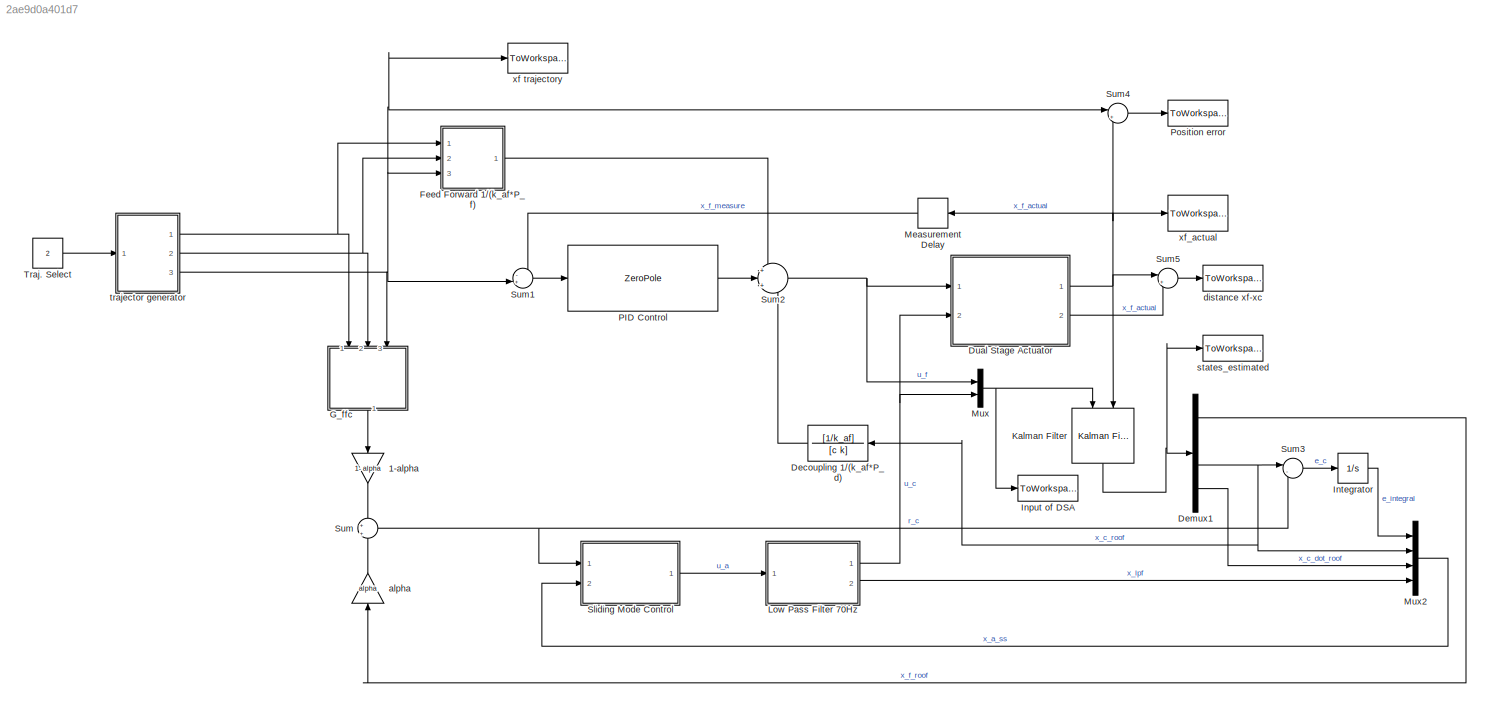
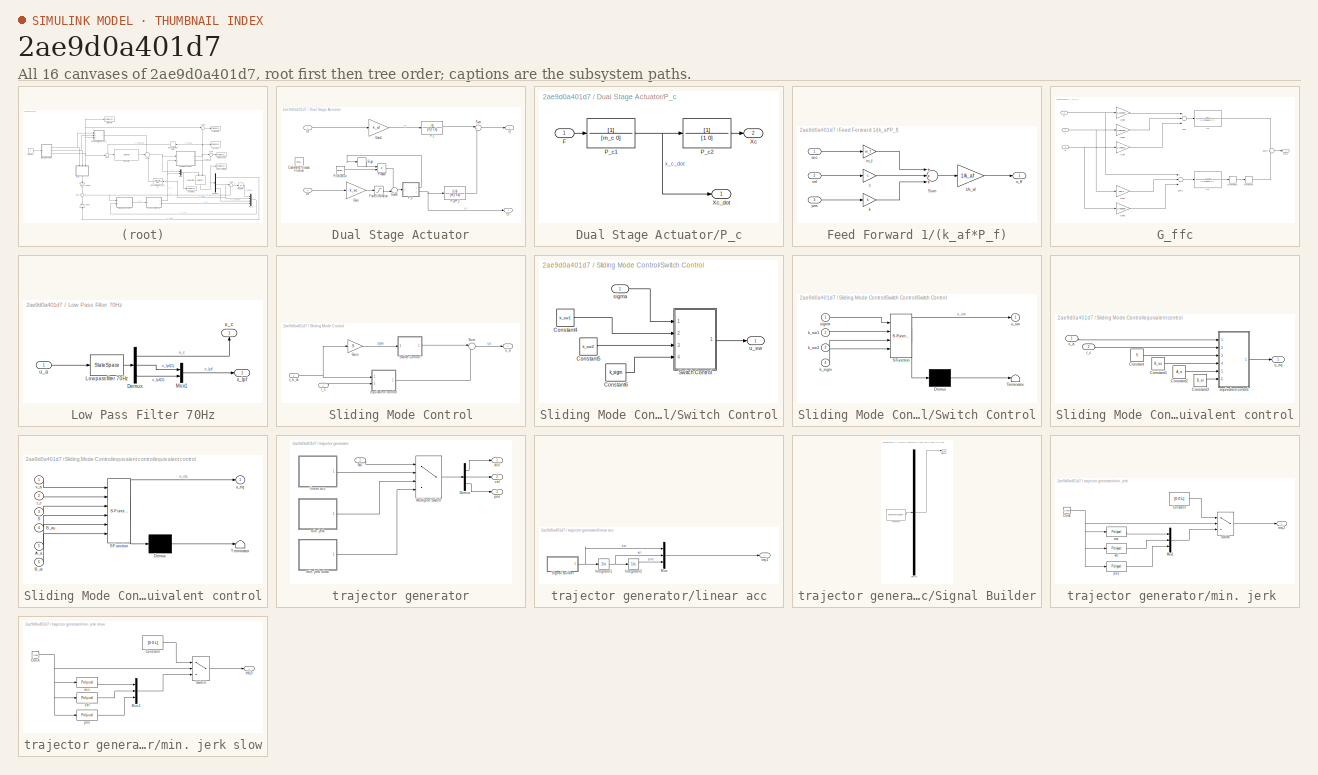
[diagram: thumbnail index - all 16 canvases of the model, root first then tree order]
MODEL slx_2ae9d0a401d7
KIND model
CONFIG AbsTol = auto
CONFIG FixedStep = 5e-5
CONFIG MaxStep = auto
CONFIG MinStep = auto
CONFIG RelTol = 1e-3
CONFIG SampleTimeConstraint = Unconstrained
CONFIG Solver = FixedStepAuto
CONFIG SolverMode = Auto
CONFIG SolverName = FixedStepAuto
CONFIG StartTime = 0.0
CONFIG StopTime = 0.6
BLOCK [Gain] 1-alpha
  Gain = 1- alpha
  OutDataTypeStr = Inherit: Inherit via internal rule
  ParamDataTypeStr = Inherit: Inherit via internal rule
  SaturateOnIntegerOverflow = off
BLOCK [TransferFcn] Decoupling 1//(k_af*P_d)
  Denominator = [c k]
  Numerator = [1/k_af]
BLOCK [Demux] Demux1
  DisplayOption = bar
  Ports = [1, 4]
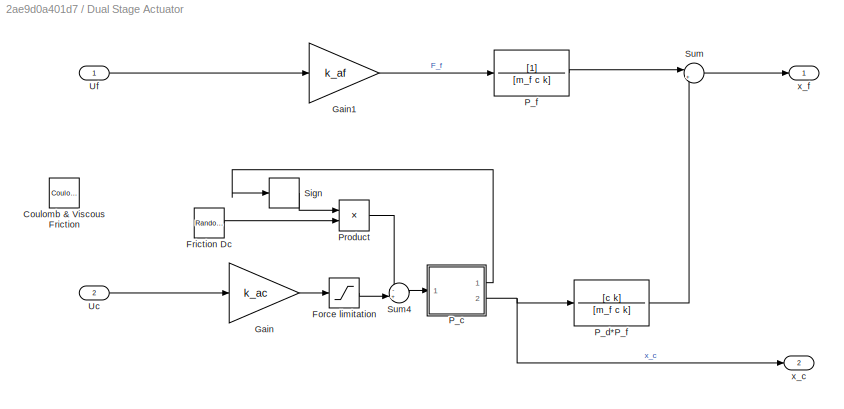
BLOCK [SubSystem] Dual Stage Actuator
  Ports = [2, 2]
  RequestExecContextInheritance = off
  Variant = off
BLOCK [Reference] Dual Stage Actuator/Coulomb & Viscous Friction  REF=simulink/Discontinuities/Coulomb &
Viscous Friction
  Commented = on
  Ports = [1, 1]
  SourceBlock = simulink/Discontinuities/Coulomb &\nViscous Friction
  SourceType = Coulombic and Viscous Friction
BLOCK [Saturate] Dual Stage Actuator/Force limitation
  InputPortMap = u0
  LowerLimit = -F_max
  Ports = [1, 1]
  UpperLimit = F_max
BLOCK [RandomNumber] Dual Stage Actuator/Friction Dc
  Mean = 19
  SampleTime = 0.1
  Variance = 6.1^2
BLOCK [Gain] Dual Stage Actuator/Gain
  Gain = k_ac
  OutDataTypeStr = Inherit: Inherit via internal rule
  ParamDataTypeStr = Inherit: Inherit via internal rule
  SaturateOnIntegerOverflow = off
BLOCK [Gain] Dual Stage Actuator/Gain1
  Gain = k_af
  OutDataTypeStr = Inherit: Inherit via internal rule
  ParamDataTypeStr = Inherit: Inherit via internal rule
  SaturateOnIntegerOverflow = off
BLOCK [SubSystem] Dual Stage Actuator/P_c
  Ports = [1, 2]
  RequestExecContextInheritance = off
  Variant = off
BLOCK [Inport] Dual Stage Actuator/P_c/F
  IconDisplay = Port number
BLOCK [TransferFcn] Dual Stage Actuator/P_c/P_c1
  Denominator = [m_c 0]
BLOCK [TransferFcn] Dual Stage Actuator/P_c/P_c2
  Denominator = [1 0]
BLOCK [Outport] Dual Stage Actuator/P_c/Xc
  IconDisplay = Port number
  Port = 2
BLOCK [Outport] Dual Stage Actuator/P_c/Xc_dot
  IconDisplay = Port number
BLOCK [TransferFcn] Dual Stage Actuator/P_d*P_f
  Denominator = [m_f c k]
  Numerator = [c k]
BLOCK [TransferFcn] Dual Stage Actuator/P_f
  Denominator = [m_f c k]
BLOCK [Product] Dual Stage Actuator/Product
  InputSameDT = off
  OutDataTypeStr = Inherit: Inherit via internal rule
  Ports = [2, 1]
  RndMeth = Floor
  SaturateOnIntegerOverflow = off
BLOCK [Signum] Dual Stage Actuator/Sign
  ZeroCross = off
BLOCK [Sum] Dual Stage Actuator/Sum
  IconShape = round
  InputSameDT = off
  Inputs = |++
  OutDataTypeStr = Inherit: Inherit via internal rule
  Ports = [2, 1]
  SaturateOnIntegerOverflow = off
BLOCK [Sum] Dual Stage Actuator/Sum4
  IconShape = round
  InputSameDT = off
  Inputs = -+|
  OutDataTypeStr = Inherit: Inherit via internal rule
  Ports = [2, 1]
  SaturateOnIntegerOverflow = off
BLOCK [Inport] Dual Stage Actuator/Uc
  IconDisplay = Port number
  Port = 2
BLOCK [Inport] Dual Stage Actuator/Uf
  IconDisplay = Port number
BLOCK [Outport] Dual Stage Actuator/x_c
  IconDisplay = Port number
  Port = 2
BLOCK [Outport] Dual Stage Actuator/x_f
  IconDisplay = Port number
BLOCK [SubSystem] Feed Forward 1//(k_af*P_f)
  Ports = [3, 1]
  RequestExecContextInheritance = off
  Variant = off
BLOCK [Gain] Feed Forward 1//(k_af*P_f)/1//k_af
  Gain = 1/k_af
  OutDataTypeStr = Inherit: Inherit via internal rule
  ParamDataTypeStr = Inherit: Inherit via internal rule
  SaturateOnIntegerOverflow = off
BLOCK [Sum] Feed Forward 1//(k_af*P_f)/Sum
  InputSameDT = off
  Inputs = +++
  OutDataTypeStr = Inherit: Inherit via internal rule
  Ports = [3, 1]
  SaturateOnIntegerOverflow = off
BLOCK [Inport] Feed Forward 1//(k_af*P_f)/acc
  IconDisplay = Port number
BLOCK [Gain] Feed Forward 1//(k_af*P_f)/c
  Gain = c
  OutDataTypeStr = Inherit: Inherit via internal rule
  ParamDataTypeStr = Inherit: Inherit via internal rule
  SaturateOnIntegerOverflow = off
BLOCK [Gain] Feed Forward 1//(k_af*P_f)/k
  Gain = k
  OutDataTypeStr = Inherit: Inherit via internal rule
  ParamDataTypeStr = Inherit: Inherit via internal rule
  SaturateOnIntegerOverflow = off
BLOCK [Gain] Feed Forward 1//(k_af*P_f)/m_f
  Gain = m_f
  OutDataTypeStr = Inherit: Inherit via internal rule
  ParamDataTypeStr = Inherit: Inherit via internal rule
  SaturateOnIntegerOverflow = off
BLOCK [Inport] Feed Forward 1//(k_af*P_f)/pos
  IconDisplay = Port number
  Port = 3
BLOCK [Outport] Feed Forward 1//(k_af*P_f)/u_ff
  IconDisplay = Port number
BLOCK [Inport] Feed Forward 1//(k_af*P_f)/vel
  IconDisplay = Port number
  Port = 2
BLOCK [SubSystem] G_ffc
  Ports = [3, 1]
  RequestExecContextInheritance = off
  Variant = off
BLOCK [Derivative] G_ffc/Derivative
BLOCK [Derivative] G_ffc/Derivative1
BLOCK [Gain] G_ffc/Gain
  Gain = 2.746e11
  OutDataTypeStr = Inherit: Inherit via internal rule
  ParamDataTypeStr = Inherit: Inherit via internal rule
  SaturateOnIntegerOverflow = off
BLOCK [Gain] G_ffc/Gain1
  Gain = 4.861e09
  OutDataTypeStr = Inherit: Inherit via internal rule
  ParamDataTypeStr = Inherit: Inherit via internal rule
  SaturateOnIntegerOverflow = off
BLOCK [Gain] G_ffc/Gain2
  Gain = 5.214e07
  OutDataTypeStr = Inherit: Inherit via internal rule
  ParamDataTypeStr = Inherit: Inherit via internal rule
  SaturateOnIntegerOverflow = off
BLOCK [Gain] G_ffc/Gain3
  Gain = 2.783e05
  OutDataTypeStr = Inherit: Inherit via internal rule
  ParamDataTypeStr = Inherit: Inherit via internal rule
  SaturateOnIntegerOverflow = off
BLOCK [Gain] G_ffc/Gain4
  Gain = 758.2
  OutDataTypeStr = Inherit: Inherit via internal rule
  ParamDataTypeStr = Inherit: Inherit via internal rule
  SaturateOnIntegerOverflow = off
BLOCK [Outport] G_ffc/Out1
  IconDisplay = Port number
BLOCK [Sum] G_ffc/Sum
  InputSameDT = off
  Inputs = 3
  OutDataTypeStr = Inherit: Inherit via internal rule
  Ports = [3, 1]
  SaturateOnIntegerOverflow = off
BLOCK [Sum] G_ffc/Sum1
  InputSameDT = off
  Inputs = 3
  OutDataTypeStr = Inherit: Inherit via internal rule
  Ports = [3, 1]
  SaturateOnIntegerOverflow = off
BLOCK [Sum] G_ffc/Sum2
  IconShape = round
  InputSameDT = off
  Inputs = 2
  OutDataTypeStr = Inherit: Inherit via internal rule
  Ports = [2, 1]
  SaturateOnIntegerOverflow = off
BLOCK [Inport] G_ffc/a
  IconDisplay = Port number
BLOCK [Inport] G_ffc/p
  IconDisplay = Port number
  Port = 3
BLOCK [TransferFcn] G_ffc/tf1
  Denominator = [1.178e09 2.746e11]
  Numerator = [1  0]
BLOCK [TransferFcn] G_ffc/tf2
  Denominator = [1.178e09 2.746e11]
  Numerator = [1 ]
BLOCK [Inport] G_ffc/v
  IconDisplay = Port number
  Port = 2
BLOCK [ToWorkspace] Input of DSA
  FixptAsFi = on
  MaxDataPoints = inf
  Ports = [1]
  SampleTime = -1
  Save2DSignal = 3-D array (concatenate along third dimension)
  SaveFormat = Timeseries
  VariableName = ctrl_input
BLOCK [Integrator] Integrator
  Ports = [1, 1]
BLOCK [Reference] Kalman Filter  REF=ctrlSharedLib/Kalman Filter
  Ports = [2, 1]
  SourceBlock = ctrlSharedLib/Kalman Filter
  SourceType = ctrlKalmanFilter
BLOCK [SubSystem] Low Pass Filter 70Hz
  Ports = [1, 2]
  RequestExecContextInheritance = off
  Variant = off
BLOCK [Demux] Low Pass Filter 70Hz/Demux
  DisplayOption = bar
  Outputs = 3
  Ports = [1, 3]
BLOCK [StateSpace] Low Pass Filter 70Hz/Low pass filter 70Hz
  A = A_lpf
  B = B_lpf
  C = [C_lpf;1 0;0 1]
  D = [0;0;0]
  Ports = [1, 1]
  X0 = 0
BLOCK [Mux] Low Pass Filter 70Hz/Mux1
  Description = x_lpf
  DisplayOption = bar
  Inputs = 2
  Ports = [2, 1]
BLOCK [Inport] Low Pass Filter 70Hz/u_a
  IconDisplay = Port number
BLOCK [Outport] Low Pass Filter 70Hz/u_c
  IconDisplay = Port number
BLOCK [Outport] Low Pass Filter 70Hz/x_lpf
  IconDisplay = Port number
  Port = 2
BLOCK [TransportDelay] Measurement Delay
  DelayTime = 0
  Ports = [1, 1]
BLOCK [Mux] Mux
  DisplayOption = bar
  Inputs = 2
  Ports = [2, 1]
BLOCK [Mux] Mux2
  DisplayOption = bar
  Ports = [4, 1]
BLOCK [ZeroPole] PID Control
  Gain = [3.2e6]
  Poles = [0 -2*pi*3000]
  Zeros = [-2*pi*100 -2*pi*333]
BLOCK [ToWorkspace] Position error
  FixptAsFi = on
  MaxDataPoints = inf
  Ports = [1]
  SampleTime = -1
  Save2DSignal = 3-D array (concatenate along third dimension)
  SaveFormat = Timeseries
  VariableName = error_xf
BLOCK [SubSystem] Sliding Mode Control
  Ports = [2, 1]
  RequestExecContextInheritance = off
  Variant = off
BLOCK [Gain] Sliding Mode Control/Gain
  Gain = S
  Multiplication = Matrix(K*u)
  OutDataTypeStr = Inherit: Inherit via internal rule
  ParamDataTypeStr = Inherit: Inherit via internal rule
  SaturateOnIntegerOverflow = off
BLOCK [Sum] Sliding Mode Control/Sum
  IconShape = round
  InputSameDT = off
  Inputs = |++
  OutDataTypeStr = Inherit: Inherit via internal rule
  Ports = [2, 1]
  SaturateOnIntegerOverflow = off
BLOCK [SubSystem] Sliding Mode Control/Switch Control
  Ports = [1, 1]
  RequestExecContextInheritance = off
  Variant = off
BLOCK [Constant] Sliding Mode Control/Switch Control/Constant4
  Value = k_sw1
BLOCK [Constant] Sliding Mode Control/Switch Control/Constant5
  Value = k_sw2
BLOCK [Constant] Sliding Mode Control/Switch Control/Constant6
  Value = k_sigm
BLOCK [SubSystem] Sliding Mode Control/Switch Control/Switch Control
  ErrorFcn = Stateflow.Translate.translate
  PermitHierarchicalResolution = ExplicitOnly
  Ports = [4, 1]
  RequestExecContextInheritance = off
  SFBlockType = MATLAB Function
  TreatAsAtomicUnit = on
  Variant = off
BLOCK [Demux] Sliding Mode Control/Switch Control/Switch Control/ Demux 
  Outputs = 1
  Ports = [1, 1]
BLOCK [S-Function] Sliding Mode Control/Switch Control/Switch Control/ SFunction 
  EnableBusSupport = on
  FunctionName = sf_sfun
  PortCounts = [4 2]
  Ports = [4, 2]
  SFunctionDeploymentMode = off
  Tag = Stateflow S-Function dwa 3
BLOCK [Terminator] Sliding Mode Control/Switch Control/Switch Control/ Terminator 
BLOCK [Inport] Sliding Mode Control/Switch Control/Switch Control/k_sigm
  IconDisplay = Port number
  Port = 4
BLOCK [Inport] Sliding Mode Control/Switch Control/Switch Control/k_sw1
  IconDisplay = Port number
  Port = 2
BLOCK [Inport] Sliding Mode Control/Switch Control/Switch Control/k_sw2
  IconDisplay = Port number
  Port = 3
BLOCK [Inport] Sliding Mode Control/Switch Control/Switch Control/sigma
  IconDisplay = Port number
BLOCK [Outport] Sliding Mode Control/Switch Control/Switch Control/u_sw
  IconDisplay = Port number
BLOCK [Inport] Sliding Mode Control/Switch Control/sigma
  IconDisplay = Port number
BLOCK [Outport] Sliding Mode Control/Switch Control/u_sw
  IconDisplay = Port number
BLOCK [SubSystem] Sliding Mode Control/equivalent control
  Ports = [2, 1]
  RequestExecContextInheritance = off
  Variant = off
BLOCK [Constant] Sliding Mode Control/equivalent control/Constant
  Value = S
  VectorParams1D = off
BLOCK [Constant] Sliding Mode Control/equivalent control/Constant1
  Value = B_au
  VectorParams1D = off
BLOCK [Constant] Sliding Mode Control/equivalent control/Constant2
  Value = A_a
  VectorParams1D = off
BLOCK [Constant] Sliding Mode Control/equivalent control/Constant3
  Value = B_ar
  VectorParams1D = off
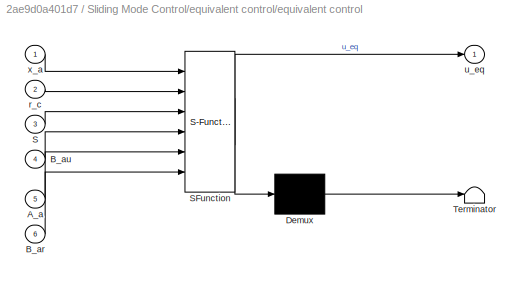
BLOCK [SubSystem] Sliding Mode Control/equivalent control/equivalent control
  ErrorFcn = Stateflow.Translate.translate
  PermitHierarchicalResolution = ExplicitOnly
  Ports = [6, 1]
  RequestExecContextInheritance = off
  SFBlockType = MATLAB Function
  TreatAsAtomicUnit = on
  Variant = off
BLOCK [Demux] Sliding Mode Control/equivalent control/equivalent control/ Demux 
  Outputs = 1
  Ports = [1, 1]
BLOCK [S-Function] Sliding Mode Control/equivalent control/equivalent control/ SFunction 
  EnableBusSupport = on
  FunctionName = sf_sfun
  PortCounts = [6 2]
  Ports = [6, 2]
  SFunctionDeploymentMode = off
  Tag = Stateflow S-Function dwa 4
BLOCK [Terminator] Sliding Mode Control/equivalent control/equivalent control/ Terminator 
BLOCK [Inport] Sliding Mode Control/equivalent control/equivalent control/A_a
  IconDisplay = Port number
  Port = 5
BLOCK [Inport] Sliding Mode Control/equivalent control/equivalent control/B_ar
  IconDisplay = Port number
  Port = 6
BLOCK [Inport] Sliding Mode Control/equivalent control/equivalent control/B_au
  IconDisplay = Port number
  Port = 4
BLOCK [Inport] Sliding Mode Control/equivalent control/equivalent control/S
  IconDisplay = Port number
  Port = 3
BLOCK [Inport] Sliding Mode Control/equivalent control/equivalent control/r_c
  IconDisplay = Port number
  Port = 2
BLOCK [Outport] Sliding Mode Control/equivalent control/equivalent control/u_eq
  IconDisplay = Port number
BLOCK [Inport] Sliding Mode Control/equivalent control/equivalent control/x_a
  IconDisplay = Port number
BLOCK [Inport] Sliding Mode Control/equivalent control/r_c
  IconDisplay = Port number
  Port = 2
BLOCK [Outport] Sliding Mode Control/equivalent control/u_eq
  IconDisplay = Port number
BLOCK [Inport] Sliding Mode Control/equivalent control/x_a
  IconDisplay = Port number
BLOCK [Inport] Sliding Mode Control/r_c
  IconDisplay = Port number
BLOCK [Outport] Sliding Mode Control/u_a
  IconDisplay = Port number
BLOCK [Inport] Sliding Mode Control/x_a_ss
  IconDisplay = Port number
  Port = 2
BLOCK [Sum] Sum
  IconShape = round
  InputSameDT = off
  Inputs = +|+
  OutDataTypeStr = Inherit: Inherit via internal rule
  Ports = [2, 1]
  SaturateOnIntegerOverflow = off
BLOCK [Sum] Sum1
  IconShape = round
  InputSameDT = off
  Inputs = -+|
  OutDataTypeStr = Inherit: Inherit via internal rule
  Ports = [2, 1]
  SaturateOnIntegerOverflow = off
BLOCK [Sum] Sum2
  IconShape = round
  InputSameDT = off
  Inputs = +|+|-
  OutDataTypeStr = Inherit: Inherit via internal rule
  Ports = [3, 1]
  SaturateOnIntegerOverflow = off
BLOCK [Sum] Sum3
  IconShape = round
  InputSameDT = off
  Inputs = |-+
  OutDataTypeStr = Inherit: Inherit via internal rule
  Ports = [2, 1]
  SaturateOnIntegerOverflow = off
BLOCK [Sum] Sum4
  IconShape = round
  InputSameDT = off
  Inputs = |+-
  OutDataTypeStr = Inherit: Inherit via internal rule
  Ports = [2, 1]
  SaturateOnIntegerOverflow = off
BLOCK [Sum] Sum5
  IconShape = round
  InputSameDT = off
  Inputs = |+-
  OutDataTypeStr = Inherit: Inherit via internal rule
  Ports = [2, 1]
  SaturateOnIntegerOverflow = off
BLOCK [Constant] Traj. Select
  Value = 2
BLOCK [Gain] alpha
  Gain = alpha
  OutDataTypeStr = Inherit: Inherit via internal rule
  ParamDataTypeStr = Inherit: Inherit via internal rule
  SaturateOnIntegerOverflow = off
BLOCK [ToWorkspace] distance xf-xc
  FixptAsFi = on
  MaxDataPoints = inf
  Ports = [1]
  SampleTime = -1
  Save2DSignal = 3-D array (concatenate along third dimension)
  SaveFormat = Timeseries
  VariableName = x_delta
BLOCK [ToWorkspace] states_estimated
  FixptAsFi = on
  MaxDataPoints = inf
  Ports = [1]
  SampleTime = -1
  Save2DSignal = 3-D array (concatenate along third dimension)
  SaveFormat = Timeseries
  VariableName = state_est
BLOCK [SubSystem] trajector generator
  Ports = [1, 3]
  RequestExecContextInheritance = off
  Variant = off
BLOCK [Demux] trajector generator/Demux
  DisplayOption = bar
  Outputs = 3
  Ports = [1, 3]
BLOCK [MultiPortSwitch] trajector generator/Multiport Switch
  InputSameDT = off
  Ports = [4, 1]
  SaturateOnIntegerOverflow = off
BLOCK [Inport] trajector generator/No.
  IconDisplay = Port number
BLOCK [Outport] trajector generator/acc
  IconDisplay = Port number
BLOCK [SubSystem] trajector generator/linear acc
  Ports = [0, 1]
  RequestExecContextInheritance = off
  Variant = off
BLOCK [Integrator] trajector generator/linear acc/Integrator1
  Ports = [1, 1]
BLOCK [Integrator] trajector generator/linear acc/Integrator2
  Ports = [1, 1]
BLOCK [Mux] trajector generator/linear acc/Mux
  DisplayOption = bar
  Inputs = 3
  Ports = [3, 1]
BLOCK [SubSystem] trajector generator/linear acc/Signal Builder
  ClipboardFcn = sigbuilder_block('clipboard');
  CloseFcn = sigbuilder_block('close');
  ContinueFcn = sigbuilder_block('continue');
  CopyFcn = sigbuilder_block('copy');
  DeleteFcn = sigbuilder_block('delete');
  LoadFcn = sigbuilder_block('load');
  MaskHideContents = on
  ModelCloseFcn = sigbuilder_block('modelClose');
  NameChangeFcn = sigbuilder_block('namechange');
  OpenFcn = sigbuilder_block('open',[436.2 135.6 550.8 400.2 ]);
  PauseFcn = sigbuilder_block('pause');
  Ports = [0, 1]
  PreSaveFcn = sigbuilder_block('preSave');
  RequestExecContextInheritance = off
  StartFcn = sigbuilder_block('start');
  StopFcn = sigbuilder_block('stop');
  Tag = STV Subsys
  Variant = off
BLOCK [Demux] trajector generator/linear acc/Signal Builder/Demux
  Outputs = 1
  Ports = [1, 1]
  Tag = STV Demux
BLOCK [FromWorkspace] trajector generator/linear acc/Signal Builder/FromWs
  SampleTime = 0
  Tag = STV FromWs
  VariableName = tuvar
  ZeroCross = on
BLOCK [Outport] trajector generator/linear acc/Signal Builder/Signal 1
  IconDisplay = Port number
  Tag = STV Outport
BLOCK [Outport] trajector generator/linear acc/traj1
  IconDisplay = Port number
BLOCK [SubSystem] trajector generator/min. jerk 
  Ports = [0, 1]
  RequestExecContextInheritance = off
  Variant = off
BLOCK [Clock] trajector generator/min. jerk /Clock
BLOCK [Constant] trajector generator/min. jerk /Constant
  Value = [0 0 L]
BLOCK [Mux] trajector generator/min. jerk /Mux1
  DisplayOption = bar
  Inputs = 3
  Ports = [3, 1]
BLOCK [Switch] trajector generator/min. jerk /Switch
  Criteria = u2 > Threshold
  InputSameDT = off
  SaturateOnIntegerOverflow = off
  Threshold = T
BLOCK [Polyval] trajector generator/min. jerk /acc
  Coefs = [120*L/(T^5), -180*L/(T^4), 60*L/(T^3), 0]
BLOCK [Polyval] trajector generator/min. jerk /pos
  Coefs = [6*L/(T^5), -15*L/(T^4), 10*L/(T^3), 0, 0, 0]
BLOCK [Outport] trajector generator/min. jerk /traj2
  IconDisplay = Port number
BLOCK [Polyval] trajector generator/min. jerk /vel
  Coefs = [30*L/(T^5), -60*L/(T^4), 30*L/(T^3), 0, 0]
BLOCK [SubSystem] trajector generator/min. jerk slow
  Ports = [0, 1]
  RequestExecContextInheritance = off
  Variant = off
BLOCK [Clock] trajector generator/min. jerk slow/Clock
BLOCK [Constant] trajector generator/min. jerk slow/Constant
  Value = [0 0 L]
BLOCK [Mux] trajector generator/min. jerk slow/Mux1
  DisplayOption = bar
  Inputs = 3
  Ports = [3, 1]
BLOCK [Switch] trajector generator/min. jerk slow/Switch
  Criteria = u2 > Threshold
  InputSameDT = off
  SaturateOnIntegerOverflow = off
  Threshold = T
BLOCK [Polyval] trajector generator/min. jerk slow/acc
  Coefs = [120*L/(T_s^5), -180*L/(T_s^4), 60*L/(T_s^3), 0]
BLOCK [Polyval] trajector generator/min. jerk slow/pos
  Coefs = [6*L/(T_s^5), -15*L/(T_s^4), 10*L/(T_s^3), 0, 0, 0]
BLOCK [Outport] trajector generator/min. jerk slow/traj3
  IconDisplay = Port number
BLOCK [Polyval] trajector generator/min. jerk slow/vel
  Coefs = [30*L/(T_s^5), -60*L/(T_s^4), 30*L/(T_s^3), 0, 0]
BLOCK [Outport] trajector generator/pos
  IconDisplay = Port number
  Port = 3
BLOCK [Outport] trajector generator/vel
  IconDisplay = Port number
  Port = 2
BLOCK [ToWorkspace] xf trajectory
  FixptAsFi = on
  MaxDataPoints = inf
  Ports = [1]
  SampleTime = -1
  Save2DSignal = 3-D array (concatenate along third dimension)
  SaveFormat = Timeseries
  VariableName = xf_traj
BLOCK [ToWorkspace] xf_actual
  FixptAsFi = on
  MaxDataPoints = inf
  Ports = [1]
  SampleTime = -1
  Save2DSignal = 3-D array (concatenate along third dimension)
  SaveFormat = Timeseries
  VariableName = xf_actual
LINE 1-alpha:1 -> Sum:1
LINE Decoupling 1//(k_af*P_d):1 -> Sum2:3
LINE Demux1:1 -> alpha:1
NET Demux1:3 -> Decoupling 1//(k_af*P_d):1, Mux2:2, Sum3:1
LINE Demux1:4 -> Mux2:3
LINE Dual Stage Actuator/Force limitation:1 -> Dual Stage Actuator/Sum4:2
LINE Dual Stage Actuator/Friction Dc:1 -> Dual Stage Actuator/Product:2
LINE Dual Stage Actuator/Gain1:1 -> Dual Stage Actuator/P_f:1
LINE Dual Stage Actuator/Gain:1 -> Dual Stage Actuator/Force limitation:1
LINE Dual Stage Actuator/P_c/F:1 -> Dual Stage Actuator/P_c/P_c1:1
NET Dual Stage Actuator/P_c/P_c1:1 -> Dual Stage Actuator/P_c/P_c2:1, Dual Stage Actuator/P_c/Xc_dot:1
LINE Dual Stage Actuator/P_c/P_c2:1 -> Dual Stage Actuator/P_c/Xc:1
LINE Dual Stage Actuator/P_c:1 -> Dual Stage Actuator/Sign:1
NET Dual Stage Actuator/P_c:2 -> Dual Stage Actuator/P_d*P_f:1, Dual Stage Actuator/x_c:1
LINE Dual Stage Actuator/P_d*P_f:1 -> Dual Stage Actuator/Sum:2
LINE Dual Stage Actuator/P_f:1 -> Dual Stage Actuator/Sum:1
LINE Dual Stage Actuator/Product:1 -> Dual Stage Actuator/Sum4:1
LINE Dual Stage Actuator/Sign:1 -> Dual Stage Actuator/Product:1
LINE Dual Stage Actuator/Sum4:1 -> Dual Stage Actuator/P_c:1
LINE Dual Stage Actuator/Sum:1 -> Dual Stage Actuator/x_f:1
LINE Dual Stage Actuator/Uc:1 -> Dual Stage Actuator/Gain:1
LINE Dual Stage Actuator/Uf:1 -> Dual Stage Actuator/Gain1:1
NET Dual Stage Actuator:1 -> Kalman Filter:2, Measurement Delay:1, Sum4:2, Sum5:1, xf_actual:1
LINE Dual Stage Actuator:2 -> Sum5:2
LINE Feed Forward 1//(k_af*P_f)/1//k_af:1 -> Feed Forward 1//(k_af*P_f)/u_ff:1
LINE Feed Forward 1//(k_af*P_f)/Sum:1 -> Feed Forward 1//(k_af*P_f)/1//k_af:1
LINE Feed Forward 1//(k_af*P_f)/acc:1 -> Feed Forward 1//(k_af*P_f)/m_f:1
LINE Feed Forward 1//(k_af*P_f)/c:1 -> Feed Forward 1//(k_af*P_f)/Sum:2
LINE Feed Forward 1//(k_af*P_f)/k:1 -> Feed Forward 1//(k_af*P_f)/Sum:3
LINE Feed Forward 1//(k_af*P_f)/m_f:1 -> Feed Forward 1//(k_af*P_f)/Sum:1
LINE Feed Forward 1//(k_af*P_f)/pos:1 -> Feed Forward 1//(k_af*P_f)/k:1
LINE Feed Forward 1//(k_af*P_f)/vel:1 -> Feed Forward 1//(k_af*P_f)/c:1
LINE Feed Forward 1//(k_af*P_f):1 -> Sum2:1
LINE G_ffc/Derivative1:1 -> G_ffc/Derivative:1
LINE G_ffc/Derivative:1 -> G_ffc/Sum2:2
LINE G_ffc/Gain1:1 -> G_ffc/Sum:2
LINE G_ffc/Gain2:1 -> G_ffc/Sum:1
LINE G_ffc/Gain3:1 -> G_ffc/Sum1:3
LINE G_ffc/Gain4:1 -> G_ffc/Sum1:2
LINE G_ffc/Gain:1 -> G_ffc/Sum:3
LINE G_ffc/Sum1:1 -> G_ffc/tf1:1
LINE G_ffc/Sum2:1 -> G_ffc/Out1:1
LINE G_ffc/Sum:1 -> G_ffc/tf2:1
NET G_ffc/a:1 -> G_ffc/Gain2:1, G_ffc/Sum1:1
NET G_ffc/p:1 -> G_ffc/Gain3:1, G_ffc/Gain:1
LINE G_ffc/tf1:1 -> G_ffc/Derivative1:1
LINE G_ffc/tf2:1 -> G_ffc/Sum2:1
NET G_ffc/v:1 -> G_ffc/Gain1:1, G_ffc/Gain4:1
LINE G_ffc:1 -> 1-alpha:1
LINE Integrator:1 -> Mux2:1
NET Kalman Filter:1 -> Demux1:1, states_estimated:1
LINE Low Pass Filter 70Hz/Demux:1 -> Low Pass Filter 70Hz/u_c:1
LINE Low Pass Filter 70Hz/Demux:2 -> Low Pass Filter 70Hz/Mux1:1
LINE Low Pass Filter 70Hz/Demux:3 -> Low Pass Filter 70Hz/Mux1:2
LINE Low Pass Filter 70Hz/Low pass filter 70Hz:1 -> Low Pass Filter 70Hz/Demux:1
LINE Low Pass Filter 70Hz/Mux1:1 -> Low Pass Filter 70Hz/x_lpf:1
LINE Low Pass Filter 70Hz/u_a:1 -> Low Pass Filter 70Hz/Low pass filter 70Hz:1
NET Low Pass Filter 70Hz:1 -> Dual Stage Actuator:2, Mux:2
LINE Low Pass Filter 70Hz:2 -> Mux2:4
LINE Measurement Delay:1 -> Sum1:1
LINE Mux2:1 -> Sliding Mode Control:2
NET Mux:1 -> Input of DSA:1, Kalman Filter:1
LINE PID Control:1 -> Sum2:2
LINE Sliding Mode Control/Gain:1 -> Sliding Mode Control/Switch Control:1
LINE Sliding Mode Control/Sum:1 -> Sliding Mode Control/u_a:1
LINE Sliding Mode Control/Switch Control/Constant4:1 -> Sliding Mode Control/Switch Control/Switch Control:2
LINE Sliding Mode Control/Switch Control/Constant5:1 -> Sliding Mode Control/Switch Control/Switch Control:3
LINE Sliding Mode Control/Switch Control/Constant6:1 -> Sliding Mode Control/Switch Control/Switch Control:4
LINE Sliding Mode Control/Switch Control/Switch Control:1 -> Sliding Mode Control/Switch Control/u_sw:1
LINE Sliding Mode Control/Switch Control/sigma:1 -> Sliding Mode Control/Switch Control/Switch Control:1
LINE Sliding Mode Control/Switch Control:1 -> Sliding Mode Control/Sum:1
LINE Sliding Mode Control/equivalent control/Constant1:1 -> Sliding Mode Control/equivalent control/equivalent control:4
LINE Sliding Mode Control/equivalent control/Constant2:1 -> Sliding Mode Control/equivalent control/equivalent control:5
LINE Sliding Mode Control/equivalent control/Constant3:1 -> Sliding Mode Control/equivalent control/equivalent control:6
LINE Sliding Mode Control/equivalent control/Constant:1 -> Sliding Mode Control/equivalent control/equivalent control:3
LINE Sliding Mode Control/equivalent control/equivalent control:1 -> Sliding Mode Control/equivalent control/u_eq:1
LINE Sliding Mode Control/equivalent control/r_c:1 -> Sliding Mode Control/equivalent control/equivalent control:2
LINE Sliding Mode Control/equivalent control/x_a:1 -> Sliding Mode Control/equivalent control/equivalent control:1
LINE Sliding Mode Control/equivalent control:1 -> Sliding Mode Control/Sum:2
LINE Sliding Mode Control/r_c:1 -> Sliding Mode Control/equivalent control:2
NET Sliding Mode Control/x_a_ss:1 -> Sliding Mode Control/Gain:1, Sliding Mode Control/equivalent control:1
LINE Sliding Mode Control:1 -> Low Pass Filter 70Hz:1
LINE Sum1:1 -> PID Control:1
NET Sum2:1 -> Dual Stage Actuator:1, Mux:1
LINE Sum3:1 -> Integrator:1
LINE Sum4:1 -> Position error:1
LINE Sum5:1 -> distance xf-xc:1
NET Sum:1 -> Sliding Mode Control:1, Sum3:2
LINE Traj. Select:1 -> trajector generator:1
LINE alpha:1 -> Sum:2
LINE trajector generator/Demux:1 -> trajector generator/acc:1
LINE trajector generator/Demux:2 -> trajector generator/vel:1
LINE trajector generator/Demux:3 -> trajector generator/pos:1
LINE trajector generator/Multiport Switch:1 -> trajector generator/Demux:1
LINE trajector generator/No.:1 -> trajector generator/Multiport Switch:1
NET trajector generator/linear acc/Integrator1:1 -> trajector generator/linear acc/Integrator2:1, trajector generator/linear acc/Mux:2
LINE trajector generator/linear acc/Integrator2:1 -> trajector generator/linear acc/Mux:3
LINE trajector generator/linear acc/Mux:1 -> trajector generator/linear acc/traj1:1
NET trajector generator/linear acc/Signal Builder:1 -> trajector generator/linear acc/Integrator1:1, trajector generator/linear acc/Mux:1
LINE trajector generator/linear acc:1 -> trajector generator/Multiport Switch:2
NET trajector generator/min. jerk /Clock:1 -> trajector generator/min. jerk /Switch:2, trajector generator/min. jerk /acc:1, trajector generator/min. jerk /pos:1, trajector generator/min. jerk /vel:1
LINE trajector generator/min. jerk /Constant:1 -> trajector generator/min. jerk /Switch:1
LINE trajector generator/min. jerk /Mux1:1 -> trajector generator/min. jerk /Switch:3
LINE trajector generator/min. jerk /Switch:1 -> trajector generator/min. jerk /traj2:1
LINE trajector generator/min. jerk /acc:1 -> trajector generator/min. jerk /Mux1:1
LINE trajector generator/min. jerk /pos:1 -> trajector generator/min. jerk /Mux1:3
LINE trajector generator/min. jerk /vel:1 -> trajector generator/min. jerk /Mux1:2
LINE trajector generator/min. jerk :1 -> trajector generator/Multiport Switch:3
NET trajector generator/min. jerk slow/Clock:1 -> trajector generator/min. jerk slow/Switch:2, trajector generator/min. jerk slow/acc:1, trajector generator/min. jerk slow/pos:1, trajector generator/min. jerk slow/vel:1
LINE trajector generator/min. jerk slow/Constant:1 -> trajector generator/min. jerk slow/Switch:1
LINE trajector generator/min. jerk slow/Mux1:1 -> trajector generator/min. jerk slow/Switch:3
LINE trajector generator/min. jerk slow/Switch:1 -> trajector generator/min. jerk slow/traj3:1
LINE trajector generator/min. jerk slow/acc:1 -> trajector generator/min. jerk slow/Mux1:1
LINE trajector generator/min. jerk slow/pos:1 -> trajector generator/min. jerk slow/Mux1:3
LINE trajector generator/min. jerk slow/vel:1 -> trajector generator/min. jerk slow/Mux1:2
LINE trajector generator/min. jerk slow:1 -> trajector generator/Multiport Switch:4
NET trajector generator:1 -> Feed Forward 1//(k_af*P_f):1, G_ffc:1
NET trajector generator:2 -> Feed Forward 1//(k_af*P_f):2, G_ffc:2
NET trajector generator:3 -> Feed Forward 1//(k_af*P_f):3, G_ffc:3, Sum1:2, Sum4:1, xf trajectory:1
note: NET lines group one-source signal fan-out (src -> all destinations, sorted); 1:1 wires keep LINE
CHART Sliding Mode Control/Switch Control/Switch Control states=1 transitions=1
  STATE_LABEL 'eML_blk_kernel()'
  STATE_LABEL 'SCRIPT:\nfunction u_sw = fcn(sigma, k_sw1, k_sw2, k_sigm)\n\nu_sw = (-k_sw1*sign(sigma)-k_sw2*sigma).*abs(2./(1+exp(-k_sigm*sigma))-1);'
CHART Sliding Mode Control/equivalent control/equivalent control states=1 transitions=1
  STATE_LABEL 'eML_blk_kernel()'
  STATE_LABEL 'SCRIPT:\nfunction u_eq = fcn(x_a, r_c, S, B_au, A_a, B_ar)\n\nu_eq = -(S*B_au)\\(S*A_a*x_a+S*B_ar*r_c);'
